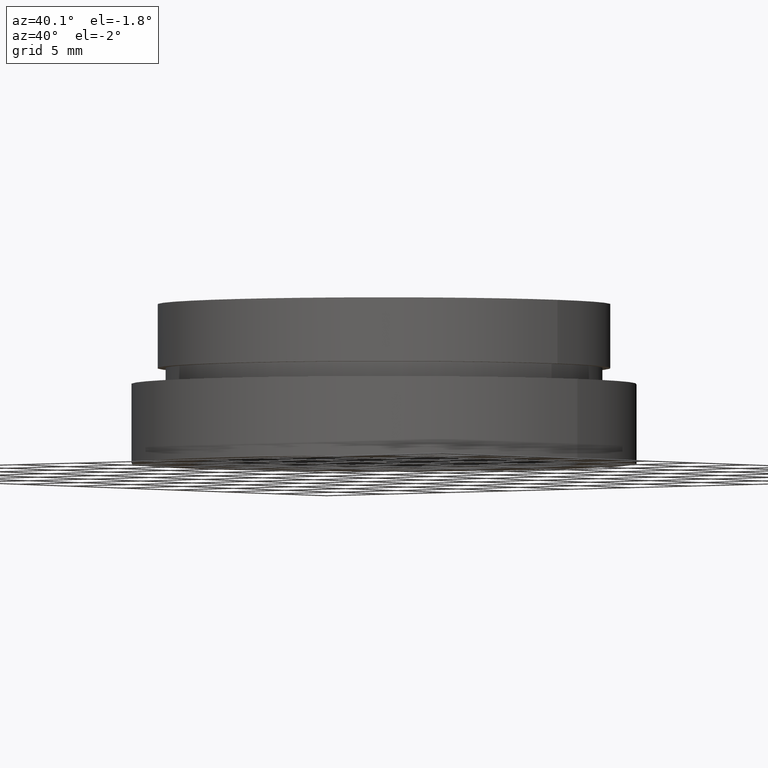
[diagram: clean part render]
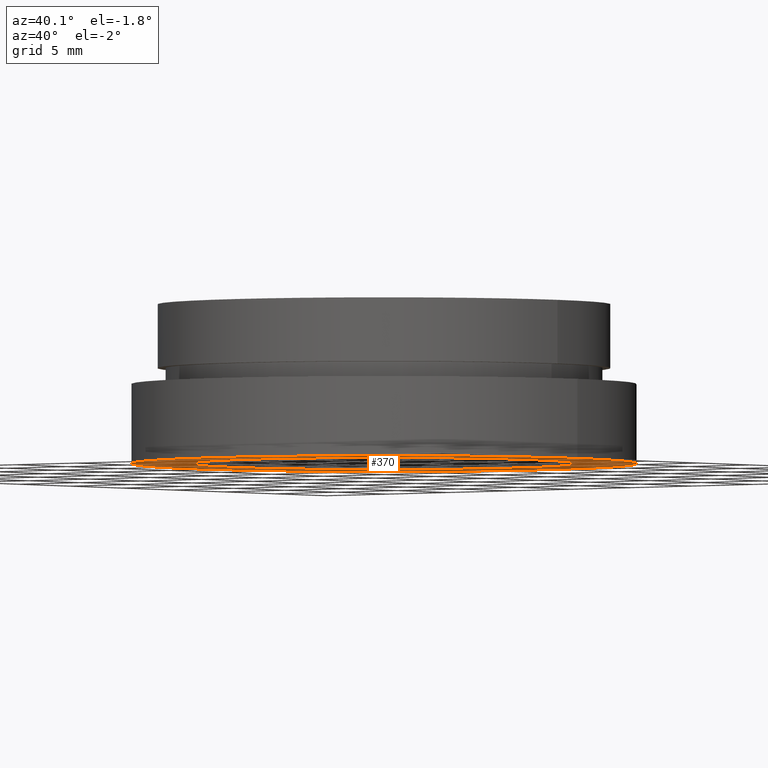
[diagram: same view with one face highlighted and labeled with its STEP entity id]
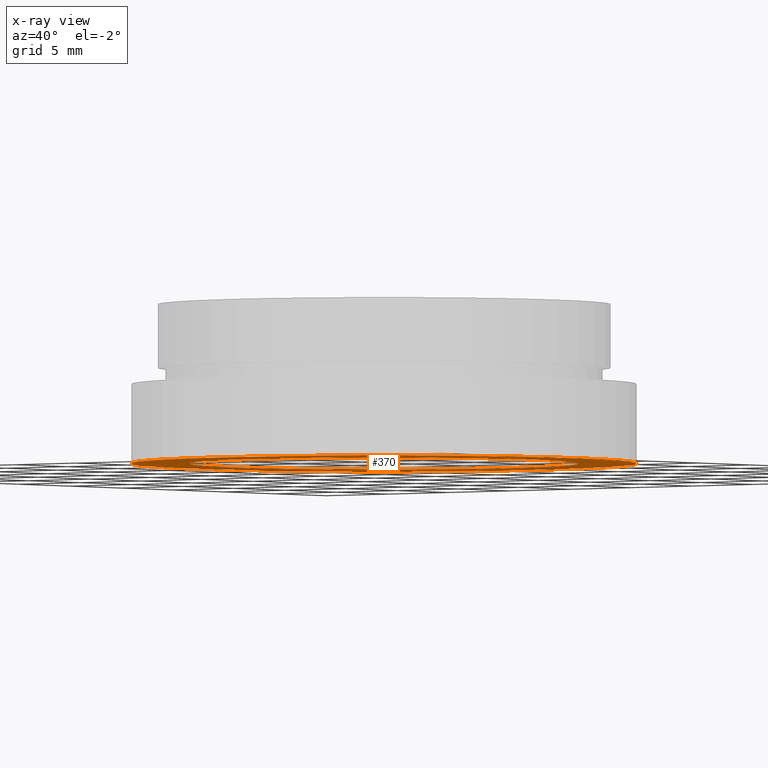
[diagram: x-ray of the same camera — body ghosted, the highlighted face saturated]
A machine part, auxiliary view. The second image highlights one B-rep face of the part: STEP entity #370.
The next image is the same camera in x-ray: the body ghosted, the highlighted face saturated — about 0% of this face is hidden behind the body in this view.
In plain terms, the highlighted planar face has unit normal (0, 0, 1).
Its self-contained STEP definition (entity closure, byte-faithful):
#15 = CARTESIAN_POINT ( 'NONE',  ( -15.87500000000000000, 0.0000000000000000000, -10.00000000000000000 ) ) ;
#20 = DIRECTION ( 'NONE',  ( -1.000000000000000000, 0.0000000000000000000, 0.0000000000000000000 ) ) ;
#26 = AXIS2_PLACEMENT_3D ( 'NONE', #91, #193, #238 ) ;
#29 = CARTESIAN_POINT ( 'NONE',  ( 15.87500000000000000, 0.0000000000000000000, -10.00000000000000000 ) ) ;
#39 = VERTEX_POINT ( 'NONE', #15 ) ;
#46 = FACE_BOUND ( 'NONE', #106, .T. ) ;
#51 = EDGE_LOOP ( 'NONE', ( #341, #58 ) ) ;
#52 = CARTESIAN_POINT ( 'NONE',  ( 15.87500000000000000, 1.944126793646423200E-015, -10.00000000000000000 ) ) ;
#58 = ORIENTED_EDGE ( 'NONE', *, *, #399, .T. ) ;
#63 = EDGE_CURVE ( 'NONE', #39, #367, #229, .T. ) ;
#76 = AXIS2_PLACEMENT_3D ( 'NONE', #29, #144, #246 ) ;
#80 = VERTEX_POINT ( 'NONE', #141 ) ;
#90 = FACE_OUTER_BOUND ( 'NONE', #51, .T. ) ;
#91 = CARTESIAN_POINT ( 'NONE',  ( 0.0000000000000000000, 0.0000000000000000000, -10.00000000000000000 ) ) ;
#106 = EDGE_LOOP ( 'NONE', ( #138, #327 ) ) ;
#114 = VERTEX_POINT ( 'NONE', #145 ) ;
#138 = ORIENTED_EDGE ( 'NONE', *, *, #199, .F. ) ;
#141 = CARTESIAN_POINT ( 'NONE',  ( 12.20000000000000100, 1.494069094959771100E-015, -10.00000000000000000 ) ) ;
#144 = DIRECTION ( 'NONE',  ( 0.0000000000000000000, 0.0000000000000000000, 1.000000000000000000 ) ) ;
#145 = CARTESIAN_POINT ( 'NONE',  ( -12.20000000000000100, 0.0000000000000000000, -10.00000000000000000 ) ) ;
#176 = CARTESIAN_POINT ( 'NONE',  ( 0.0000000000000000000, 0.0000000000000000000, -10.00000000000000000 ) ) ;
#193 = DIRECTION ( 'NONE',  ( -0.0000000000000000000, -0.0000000000000000000, -1.000000000000000000 ) ) ;
#199 = EDGE_CURVE ( 'NONE', #114, #80, #326, .T. ) ;
#212 = PLANE ( 'NONE',  #76 ) ;
#229 = CIRCLE ( 'NONE', #281, 15.87500000000000000 ) ;
#238 = DIRECTION ( 'NONE',  ( -1.000000000000000000, 0.0000000000000000000, 0.0000000000000000000 ) ) ;
#246 = DIRECTION ( 'NONE',  ( 1.000000000000000000, 0.0000000000000000000, -0.0000000000000000000 ) ) ;
#249 = DIRECTION ( 'NONE',  ( -1.000000000000000000, 0.0000000000000000000, 0.0000000000000000000 ) ) ;
#256 = CIRCLE ( 'NONE', #26, 12.20000000000000100 ) ;
#277 = CARTESIAN_POINT ( 'NONE',  ( 0.0000000000000000000, 0.0000000000000000000, -10.00000000000000000 ) ) ;
#281 = AXIS2_PLACEMENT_3D ( 'NONE', #277, #291, #20 ) ;
#286 = CARTESIAN_POINT ( 'NONE',  ( 0.0000000000000000000, 0.0000000000000000000, -10.00000000000000000 ) ) ;
#289 = EDGE_CURVE ( 'NONE', #80, #114, #256, .T. ) ;
#291 = DIRECTION ( 'NONE',  ( -0.0000000000000000000, -0.0000000000000000000, -1.000000000000000000 ) ) ;
#326 = CIRCLE ( 'NONE', #434, 12.20000000000000100 ) ;
#327 = ORIENTED_EDGE ( 'NONE', *, *, #289, .F. ) ;
#341 = ORIENTED_EDGE ( 'NONE', *, *, #63, .T. ) ;
#344 = AXIS2_PLACEMENT_3D ( 'NONE', #286, #389, #384 ) ;
#367 = VERTEX_POINT ( 'NONE', #52 ) ;
#369 = CIRCLE ( 'NONE', #344, 15.87500000000000000 ) ;
#370 = ADVANCED_FACE ( 'NONE', ( #46, #90 ), #212, .F. ) ;
#384 = DIRECTION ( 'NONE',  ( -1.000000000000000000, 0.0000000000000000000, 0.0000000000000000000 ) ) ;
#388 = DIRECTION ( 'NONE',  ( -0.0000000000000000000, -0.0000000000000000000, -1.000000000000000000 ) ) ;
#389 = DIRECTION ( 'NONE',  ( -0.0000000000000000000, -0.0000000000000000000, -1.000000000000000000 ) ) ;
#399 = EDGE_CURVE ( 'NONE', #367, #39, #369, .T. ) ;
#434 = AXIS2_PLACEMENT_3D ( 'NONE', #176, #388, #249 ) ;